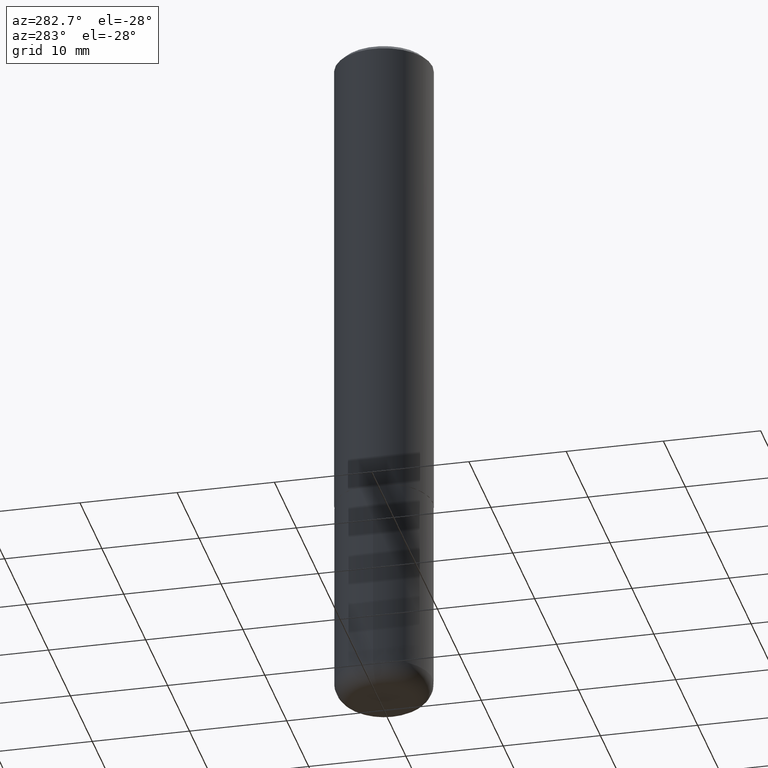
[diagram: clean part render]
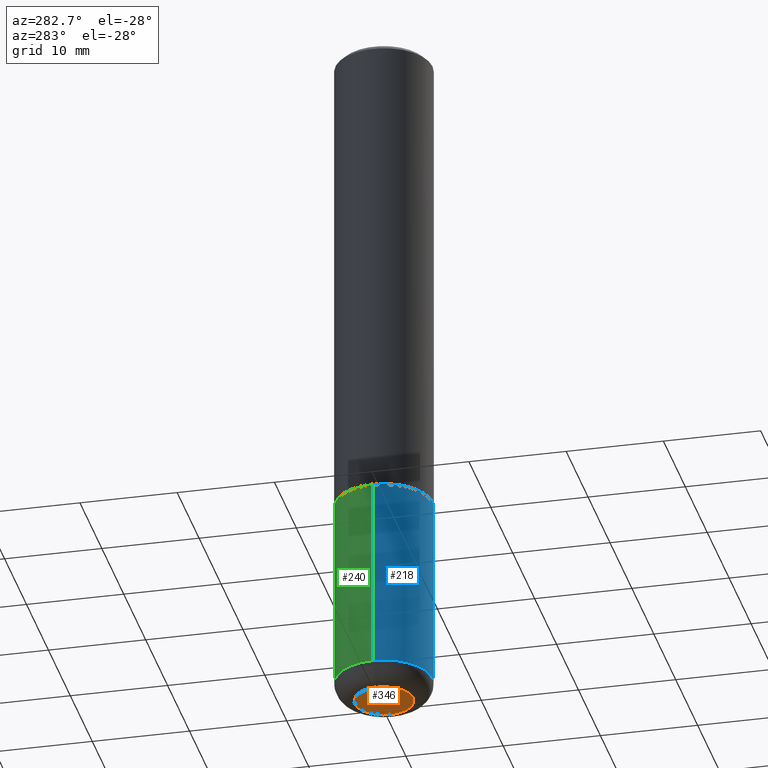
[diagram: same view with three faces highlighted in distinct colors, each labeled with its STEP entity id]
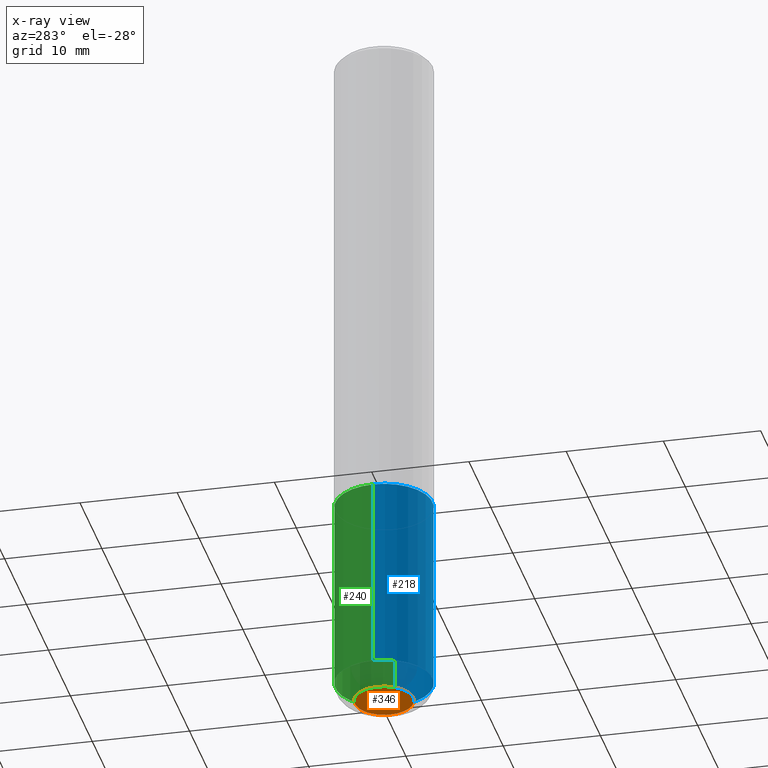
[diagram: x-ray of the same camera — body ghosted, the three highlighted faces saturated]
A machine part, auxiliary view with three faces highlighted in distinct colors.
The next image is the same camera in x-ray (body ghosted, the three faces saturated) — at least one of them is partly hidden behind the body in this view.
Their STEP definitions:

[orange] entity #346 — the highlighted planar face has unit normal (0, -0, -1).
#2 = VERTEX_POINT ( 'NONE', #366 ) ;
#6 = ORIENTED_EDGE ( 'NONE', *, *, #323, .F. ) ;
#13 = DIRECTION ( 'NONE',  ( -1.000000000000000000, 6.982962677686265922E-15, -4.876176775795935793E-29 ) ) ;
#16 = AXIS2_PLACEMENT_3D ( 'NONE', #310, #397, #372 ) ;
#41 = PLANE ( 'NONE',  #288 ) ;
#135 = ORIENTED_EDGE ( 'NONE', *, *, #394, .F. ) ;
#220 = CARTESIAN_POINT ( 'NONE',  ( 0.1181500000000000189, -1.072199004345341266E-14, -2.834600000000000009 ) ) ;
#258 = EDGE_LOOP ( 'NONE', ( #6, #135 ) ) ;
#267 = CIRCLE ( 'NONE', #326, 0.1181500000000000189 ) ;
#275 = CARTESIAN_POINT ( 'NONE',  ( 6.931925878012387517E-29, -9.896953003084780885E-15, -2.834600000000000009 ) ) ;
#288 = AXIS2_PLACEMENT_3D ( 'NONE', #275, #399, #13 ) ;
#293 = VERTEX_POINT ( 'NONE', #220 ) ;
#294 = CIRCLE ( 'NONE', #16, 0.1181500000000000189 ) ;
#310 = CARTESIAN_POINT ( 'NONE',  ( 6.931925878012387517E-29, -9.896953003084780885E-15, -2.834600000000000009 ) ) ;
#323 = EDGE_CURVE ( 'NONE', #293, #2, #294, .T. ) ;
#326 = AXIS2_PLACEMENT_3D ( 'NONE', #334, #362, #370 ) ;
#334 = CARTESIAN_POINT ( 'NONE',  ( 6.931925878012387517E-29, -9.896953003084780885E-15, -2.834600000000000009 ) ) ;
#346 = ADVANCED_FACE ( 'NONE', ( #374 ), #41, .T. ) ;
#362 = DIRECTION ( 'NONE',  ( -2.445468806185136597E-29, 3.491481338843145583E-15, 1.000000000000000000 ) ) ;
#366 = CARTESIAN_POINT ( 'NONE',  ( -0.1181500000000000189, -8.640458403579145034E-15, -2.834600000000000009 ) ) ;
#370 = DIRECTION ( 'NONE',  ( 1.000000000000000000, -6.982962677686265922E-15, 0.000000000000000000 ) ) ;
#372 = DIRECTION ( 'NONE',  ( 1.000000000000000000, -6.982962677686265922E-15, 0.000000000000000000 ) ) ;
#374 = FACE_OUTER_BOUND ( 'NONE', #258, .T. ) ;
#394 = EDGE_CURVE ( 'NONE', #2, #293, #267, .T. ) ;
#397 = DIRECTION ( 'NONE',  ( -2.445468806185136597E-29, 3.491481338843145583E-15, 1.000000000000000000 ) ) ;
#399 = DIRECTION ( 'NONE',  ( 2.438088387897960049E-29, -3.491481338843145188E-15, -1.000000000000000000 ) ) ;

[blue] entity #218 — the highlighted cylindrical surface (partial cylindrical patch) has radius 5 mm, axis along (-0, 0, 1).
#18 = DIRECTION ( 'NONE',  ( -2.445468806185136597E-29, 3.491481338843145583E-15, 1.000000000000000000 ) ) ;
#24 = VECTOR ( 'NONE', #243, 39.37007874015748143 ) ;
#32 = CARTESIAN_POINT ( 'NONE',  ( -0.1968499999999999694, 1.398703375343756999E-15, -9.682923725166782276E-30 ) ) ;
#59 = EDGE_CURVE ( 'NONE', #418, #262, #305, .T. ) ;
#68 = ORIENTED_EDGE ( 'NONE', *, *, #210, .T. ) ;
#69 = AXIS2_PLACEMENT_3D ( 'NONE', #405, #247, #271 ) ;
#88 = CARTESIAN_POINT ( 'NONE',  ( 6.739467482965618232E-29, -9.622173421717824390E-15, -2.755900000000000016 ) ) ;
#99 = AXIS2_PLACEMENT_3D ( 'NONE', #284, #162, #121 ) ;
#102 = ORIENTED_EDGE ( 'NONE', *, *, #377, .T. ) ;
#121 = DIRECTION ( 'NONE',  ( 1.000000000000000000, -6.982962677686266711E-15, 4.876176775795935793E-29 ) ) ;
#132 = EDGE_LOOP ( 'NONE', ( #214, #68, #102, #166 ) ) ;
#145 = CARTESIAN_POINT ( 'NONE',  ( 0.1968499999999999694, -1.374596203102541411E-15, 9.598753983154298056E-30 ) ) ;
#162 = DIRECTION ( 'NONE',  ( -2.445468806185136597E-29, 3.491481338843145583E-15, 1.000000000000000000 ) ) ;
#166 = ORIENTED_EDGE ( 'NONE', *, *, #322, .F. ) ;
#195 = DIRECTION ( 'NONE',  ( 1.000000000000000000, -6.982962677686269866E-15, 0.000000000000000000 ) ) ;
#206 = LINE ( 'NONE', #145, #24 ) ;
#207 = DIRECTION ( 'NONE',  ( -2.445468806185136877E-29, 3.491481338843145188E-15, 1.000000000000000000 ) ) ;
#210 = EDGE_CURVE ( 'NONE', #418, #361, #272, .T. ) ;
#214 = ORIENTED_EDGE ( 'NONE', *, *, #59, .F. ) ;
#218 = ADVANCED_FACE ( 'NONE', ( #286 ), #410, .T. ) ;
#226 = CARTESIAN_POINT ( 'NONE',  ( -0.1968500000000000250, -6.848873843271521050E-15, -1.968500000000000139 ) ) ;
#238 = CIRCLE ( 'NONE', #69, 0.1968500000000000250 ) ;
#243 = DIRECTION ( 'NONE',  ( -2.445468806185136877E-29, 3.491481338843145188E-15, 1.000000000000000000 ) ) ;
#247 = DIRECTION ( 'NONE',  ( -2.445468806185136597E-29, 3.491481338843145583E-15, 1.000000000000000000 ) ) ;
#248 = AXIS2_PLACEMENT_3D ( 'NONE', #88, #18, #195 ) ;
#262 = VERTEX_POINT ( 'NONE', #226 ) ;
#271 = DIRECTION ( 'NONE',  ( 1.000000000000000000, -6.982962677686267499E-15, 0.000000000000000000 ) ) ;
#272 = CIRCLE ( 'NONE', #248, 0.1968499999999999694 ) ;
#278 = CARTESIAN_POINT ( 'NONE',  ( 0.1968499999999999694, -1.099676962482036600E-14, -2.755900000000000016 ) ) ;
#284 = CARTESIAN_POINT ( 'NONE',  ( 0.000000000000000000, 0.000000000000000000, 0.000000000000000000 ) ) ;
#286 = FACE_OUTER_BOUND ( 'NONE', #132, .T. ) ;
#297 = CARTESIAN_POINT ( 'NONE',  ( 0.1968500000000000250, -8.247577218615273316E-15, -1.968500000000000139 ) ) ;
#301 = CARTESIAN_POINT ( 'NONE',  ( -0.1968499999999999694, -8.223470046374067391E-15, -2.755900000000000016 ) ) ;
#305 = LINE ( 'NONE', #32, #331 ) ;
#322 = EDGE_CURVE ( 'NONE', #262, #416, #238, .T. ) ;
#331 = VECTOR ( 'NONE', #207, 39.37007874015748143 ) ;
#361 = VERTEX_POINT ( 'NONE', #278 ) ;
#377 = EDGE_CURVE ( 'NONE', #361, #416, #206, .T. ) ;
#405 = CARTESIAN_POINT ( 'NONE',  ( 4.813905344975441835E-29, -6.872981015512731707E-15, -1.968500000000000139 ) ) ;
#410 = CYLINDRICAL_SURFACE ( 'NONE', #99, 0.1968499999999999694 ) ;
#416 = VERTEX_POINT ( 'NONE', #297 ) ;
#418 = VERTEX_POINT ( 'NONE', #301 ) ;

[green] entity #240 — the highlighted cylindrical surface (partial cylindrical patch) has radius 5 mm, axis along (-0, 0, 1).
#24 = VECTOR ( 'NONE', #243, 39.37007874015748143 ) ;
#32 = CARTESIAN_POINT ( 'NONE',  ( -0.1968499999999999694, 1.398703375343756999E-15, -9.682923725166782276E-30 ) ) ;
#39 = EDGE_LOOP ( 'NONE', ( #170, #330, #110, #168 ) ) ;
#56 = DIRECTION ( 'NONE',  ( -2.445468806185136597E-29, 3.491481338843145583E-15, 1.000000000000000000 ) ) ;
#59 = EDGE_CURVE ( 'NONE', #418, #262, #305, .T. ) ;
#82 = AXIS2_PLACEMENT_3D ( 'NONE', #203, #56, #200 ) ;
#108 = EDGE_CURVE ( 'NONE', #416, #262, #202, .T. ) ;
#110 = ORIENTED_EDGE ( 'NONE', *, *, #108, .F. ) ;
#122 = FACE_OUTER_BOUND ( 'NONE', #39, .T. ) ;
#123 = CIRCLE ( 'NONE', #183, 0.1968499999999999694 ) ;
#145 = CARTESIAN_POINT ( 'NONE',  ( 0.1968499999999999694, -1.374596203102541411E-15, 9.598753983154298056E-30 ) ) ;
#154 = EDGE_CURVE ( 'NONE', #361, #418, #123, .T. ) ;
#165 = CARTESIAN_POINT ( 'NONE',  ( 0.000000000000000000, 0.000000000000000000, 0.000000000000000000 ) ) ;
#167 = AXIS2_PLACEMENT_3D ( 'NONE', #165, #409, #317 ) ;
#168 = ORIENTED_EDGE ( 'NONE', *, *, #377, .F. ) ;
#170 = ORIENTED_EDGE ( 'NONE', *, *, #154, .T. ) ;
#183 = AXIS2_PLACEMENT_3D ( 'NONE', #407, #221, #190 ) ;
#190 = DIRECTION ( 'NONE',  ( 1.000000000000000000, -6.982962677686269866E-15, 0.000000000000000000 ) ) ;
#200 = DIRECTION ( 'NONE',  ( 1.000000000000000000, -6.982962677686267499E-15, 0.000000000000000000 ) ) ;
#202 = CIRCLE ( 'NONE', #82, 0.1968500000000000250 ) ;
#203 = CARTESIAN_POINT ( 'NONE',  ( 4.813905344975441835E-29, -6.872981015512731707E-15, -1.968500000000000139 ) ) ;
#206 = LINE ( 'NONE', #145, #24 ) ;
#207 = DIRECTION ( 'NONE',  ( -2.445468806185136877E-29, 3.491481338843145188E-15, 1.000000000000000000 ) ) ;
#221 = DIRECTION ( 'NONE',  ( -2.445468806185136597E-29, 3.491481338843145583E-15, 1.000000000000000000 ) ) ;
#226 = CARTESIAN_POINT ( 'NONE',  ( -0.1968500000000000250, -6.848873843271521050E-15, -1.968500000000000139 ) ) ;
#240 = ADVANCED_FACE ( 'NONE', ( #122 ), #253, .T. ) ;
#243 = DIRECTION ( 'NONE',  ( -2.445468806185136877E-29, 3.491481338843145188E-15, 1.000000000000000000 ) ) ;
#253 = CYLINDRICAL_SURFACE ( 'NONE', #167, 0.1968499999999999694 ) ;
#262 = VERTEX_POINT ( 'NONE', #226 ) ;
#278 = CARTESIAN_POINT ( 'NONE',  ( 0.1968499999999999694, -1.099676962482036600E-14, -2.755900000000000016 ) ) ;
#297 = CARTESIAN_POINT ( 'NONE',  ( 0.1968500000000000250, -8.247577218615273316E-15, -1.968500000000000139 ) ) ;
#301 = CARTESIAN_POINT ( 'NONE',  ( -0.1968499999999999694, -8.223470046374067391E-15, -2.755900000000000016 ) ) ;
#305 = LINE ( 'NONE', #32, #331 ) ;
#317 = DIRECTION ( 'NONE',  ( 1.000000000000000000, -6.982962677686266711E-15, 4.876176775795935793E-29 ) ) ;
#330 = ORIENTED_EDGE ( 'NONE', *, *, #59, .T. ) ;
#331 = VECTOR ( 'NONE', #207, 39.37007874015748143 ) ;
#361 = VERTEX_POINT ( 'NONE', #278 ) ;
#377 = EDGE_CURVE ( 'NONE', #361, #416, #206, .T. ) ;
#407 = CARTESIAN_POINT ( 'NONE',  ( 6.739467482965618232E-29, -9.622173421717824390E-15, -2.755900000000000016 ) ) ;
#409 = DIRECTION ( 'NONE',  ( -2.445468806185136597E-29, 3.491481338843145583E-15, 1.000000000000000000 ) ) ;
#416 = VERTEX_POINT ( 'NONE', #297 ) ;
#418 = VERTEX_POINT ( 'NONE', #301 ) ;